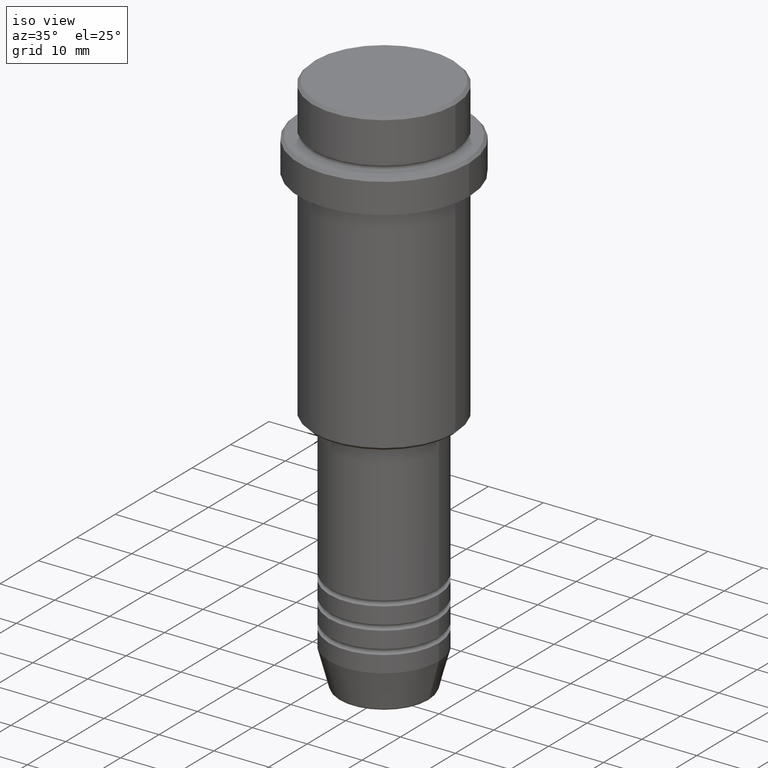
[diagram: clean part render]
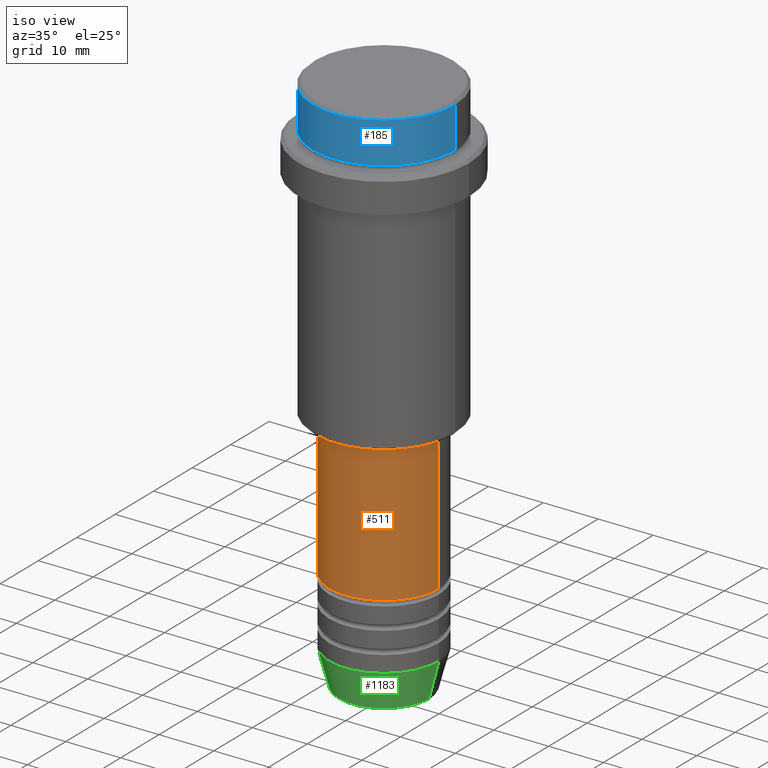
[diagram: same view with three faces highlighted in distinct colors, each labeled with its STEP entity id]
A machine part, iso view with three faces highlighted in distinct colors.
Their STEP definitions:

[orange] entity #511 — the highlighted cylindrical surface (partial cylindrical patch) has radius 10 mm, axis along (-0, -0, 1).
#30 = DIRECTION ( 'NONE',  ( -0.000000000000000000, -0.000000000000000000, 1.000000000000000000 ) ) ;
#105 = EDGE_CURVE ( 'NONE', #400, #189, #317, .T. ) ;
#120 = VERTEX_POINT ( 'NONE', #1023 ) ;
#167 = DIRECTION ( 'NONE',  ( 1.000000000000000000, 0.000000000000000000, 0.000000000000000000 ) ) ;
#189 = VERTEX_POINT ( 'NONE', #632 ) ;
#221 = ORIENTED_EDGE ( 'NONE', *, *, #105, .F. ) ;
#292 = AXIS2_PLACEMENT_3D ( 'NONE', #812, #30, #468 ) ;
#317 = CIRCLE ( 'NONE', #1143, 10.00000000000000178 ) ;
#400 = VERTEX_POINT ( 'NONE', #563 ) ;
#465 = ORIENTED_EDGE ( 'NONE', *, *, #1091, .F. ) ;
#468 = DIRECTION ( 'NONE',  ( 1.000000000000000000, 0.000000000000000000, 0.000000000000000000 ) ) ;
#477 = CARTESIAN_POINT ( 'NONE',  ( 0.000000000000000000, 0.000000000000000000, 0.000000000000000000 ) ) ;
#511 = ADVANCED_FACE ( 'NONE', ( #925 ), #573, .T. ) ;
#519 = EDGE_CURVE ( 'NONE', #1058, #120, #730, .T. ) ;
#563 = CARTESIAN_POINT ( 'NONE',  ( -10.00000000000000178, 1.224646799147353454E-15, -55.99999999999997868 ) ) ;
#573 = CYLINDRICAL_SURFACE ( 'NONE', #844, 10.00000000000000178 ) ;
#584 = DIRECTION ( 'NONE',  ( -0.000000000000000000, -0.000000000000000000, 1.000000000000000000 ) ) ;
#632 = CARTESIAN_POINT ( 'NONE',  ( 10.00000000000000178, 0.000000000000000000, -55.99999999999997868 ) ) ;
#634 = DIRECTION ( 'NONE',  ( -0.000000000000000000, -0.000000000000000000, 1.000000000000000000 ) ) ;
#671 = LINE ( 'NONE', #1319, #1375 ) ;
#730 = CIRCLE ( 'NONE', #292, 10.00000000000000000 ) ;
#742 = CARTESIAN_POINT ( 'NONE',  ( -10.00000000000000178, 1.224646799147353454E-15, 0.000000000000000000 ) ) ;
#767 = ORIENTED_EDGE ( 'NONE', *, *, #519, .T. ) ;
#812 = CARTESIAN_POINT ( 'NONE',  ( 0.000000000000000000, 0.000000000000000000, -80.99999999999987210 ) ) ;
#834 = ORIENTED_EDGE ( 'NONE', *, *, #1252, .T. ) ;
#844 = AXIS2_PLACEMENT_3D ( 'NONE', #477, #917, #1358 ) ;
#846 = LINE ( 'NONE', #742, #1016 ) ;
#883 = CARTESIAN_POINT ( 'NONE',  ( 0.000000000000000000, 0.000000000000000000, -55.99999999999997868 ) ) ;
#917 = DIRECTION ( 'NONE',  ( -0.000000000000000000, -0.000000000000000000, 1.000000000000000000 ) ) ;
#925 = FACE_OUTER_BOUND ( 'NONE', #941, .T. ) ;
#927 = CARTESIAN_POINT ( 'NONE',  ( -10.00000000000000000, 1.224646799147353256E-15, -80.99999999999987210 ) ) ;
#941 = EDGE_LOOP ( 'NONE', ( #465, #767, #834, #221 ) ) ;
#1016 = VECTOR ( 'NONE', #1269, 1000.000000000000000 ) ;
#1023 = CARTESIAN_POINT ( 'NONE',  ( 10.00000000000000000, 0.000000000000000000, -80.99999999999987210 ) ) ;
#1058 = VERTEX_POINT ( 'NONE', #927 ) ;
#1091 = EDGE_CURVE ( 'NONE', #1058, #400, #846, .T. ) ;
#1143 = AXIS2_PLACEMENT_3D ( 'NONE', #883, #584, #167 ) ;
#1252 = EDGE_CURVE ( 'NONE', #120, #189, #671, .T. ) ;
#1269 = DIRECTION ( 'NONE',  ( -0.000000000000000000, -0.000000000000000000, 1.000000000000000000 ) ) ;
#1319 = CARTESIAN_POINT ( 'NONE',  ( 10.00000000000000178, 0.000000000000000000, 0.000000000000000000 ) ) ;
#1358 = DIRECTION ( 'NONE',  ( 1.000000000000000000, 0.000000000000000000, 0.000000000000000000 ) ) ;
#1375 = VECTOR ( 'NONE', #634, 1000.000000000000000 ) ;

[blue] entity #185 — the highlighted cylindrical surface (partial cylindrical patch) has radius 13 mm, axis along (-0, -0, 1).
#69 = DIRECTION ( 'NONE',  ( -0.000000000000000000, -0.000000000000000000, 1.000000000000000000 ) ) ;
#81 = CARTESIAN_POINT ( 'NONE',  ( 12.99999999999999822, 0.000000000000000000, -7.999999999999998224 ) ) ;
#168 = EDGE_LOOP ( 'NONE', ( #1008, #912, #283, #622 ) ) ;
#185 = ADVANCED_FACE ( 'NONE', ( #412 ), #196, .T. ) ;
#192 = EDGE_CURVE ( 'NONE', #532, #1312, #843, .T. ) ;
#196 = CYLINDRICAL_SURFACE ( 'NONE', #1237, 12.99999999999999822 ) ;
#258 = EDGE_CURVE ( 'NONE', #352, #1312, #842, .T. ) ;
#277 = VERTEX_POINT ( 'NONE', #81 ) ;
#282 = CARTESIAN_POINT ( 'NONE',  ( -12.99999999999999822, 1.592040838891558898E-15, 0.000000000000000000 ) ) ;
#283 = ORIENTED_EDGE ( 'NONE', *, *, #426, .T. ) ;
#288 = DIRECTION ( 'NONE',  ( 0.000000000000000000, 0.000000000000000000, -1.000000000000000000 ) ) ;
#295 = AXIS2_PLACEMENT_3D ( 'NONE', #655, #750, #1185 ) ;
#352 = VERTEX_POINT ( 'NONE', #1205 ) ;
#373 = CARTESIAN_POINT ( 'NONE',  ( 12.99999999999999822, 0.000000000000000000, 0.000000000000000000 ) ) ;
#406 = VECTOR ( 'NONE', #728, 1000.000000000000000 ) ;
#412 = FACE_OUTER_BOUND ( 'NONE', #168, .T. ) ;
#426 = EDGE_CURVE ( 'NONE', #277, #532, #602, .T. ) ;
#510 = DIRECTION ( 'NONE',  ( 1.000000000000000000, 0.000000000000000000, 0.000000000000000000 ) ) ;
#532 = VERTEX_POINT ( 'NONE', #1247 ) ;
#602 = LINE ( 'NONE', #373, #1371 ) ;
#622 = ORIENTED_EDGE ( 'NONE', *, *, #192, .T. ) ;
#655 = CARTESIAN_POINT ( 'NONE',  ( 0.000000000000000000, 0.000000000000000000, -7.999999999999998224 ) ) ;
#705 = DIRECTION ( 'NONE',  ( -0.000000000000000000, -0.000000000000000000, 1.000000000000000000 ) ) ;
#706 = AXIS2_PLACEMENT_3D ( 'NONE', #1075, #288, #510 ) ;
#728 = DIRECTION ( 'NONE',  ( -0.000000000000000000, -0.000000000000000000, 1.000000000000000000 ) ) ;
#733 = CIRCLE ( 'NONE', #295, 12.99999999999999822 ) ;
#750 = DIRECTION ( 'NONE',  ( -0.000000000000000000, -0.000000000000000000, 1.000000000000000000 ) ) ;
#752 = DIRECTION ( 'NONE',  ( 1.000000000000000000, 0.000000000000000000, 0.000000000000000000 ) ) ;
#794 = EDGE_CURVE ( 'NONE', #352, #277, #733, .T. ) ;
#842 = LINE ( 'NONE', #282, #406 ) ;
#843 = CIRCLE ( 'NONE', #706, 12.99999999999999822 ) ;
#891 = CARTESIAN_POINT ( 'NONE',  ( -12.99999999999999822, 1.592040838891558898E-15, -0.5000000000000177636 ) ) ;
#912 = ORIENTED_EDGE ( 'NONE', *, *, #794, .T. ) ;
#951 = CARTESIAN_POINT ( 'NONE',  ( 0.000000000000000000, 0.000000000000000000, 0.000000000000000000 ) ) ;
#1008 = ORIENTED_EDGE ( 'NONE', *, *, #258, .F. ) ;
#1075 = CARTESIAN_POINT ( 'NONE',  ( 0.000000000000000000, 0.000000000000000000, -0.5000000000000177636 ) ) ;
#1185 = DIRECTION ( 'NONE',  ( 1.000000000000000000, 0.000000000000000000, 0.000000000000000000 ) ) ;
#1205 = CARTESIAN_POINT ( 'NONE',  ( -12.99999999999999822, 1.592040838891558898E-15, -7.999999999999998224 ) ) ;
#1237 = AXIS2_PLACEMENT_3D ( 'NONE', #951, #69, #752 ) ;
#1247 = CARTESIAN_POINT ( 'NONE',  ( 12.99999999999999822, 0.000000000000000000, -0.5000000000000177636 ) ) ;
#1312 = VERTEX_POINT ( 'NONE', #891 ) ;
#1371 = VECTOR ( 'NONE', #705, 1000.000000000000000 ) ;

[green] entity #1183 — the highlighted conical surface has half-angle 15 deg.
#22 = EDGE_CURVE ( 'NONE', #526, #591, #452, .T. ) ;
#83 = DIRECTION ( 'NONE',  ( 0.2588190451025214611, 0.000000000000000000, 0.9659258262890679791 ) ) ;
#98 = EDGE_CURVE ( 'NONE', #526, #414, #916, .T. ) ;
#197 = ORIENTED_EDGE ( 'NONE', *, *, #22, .F. ) ;
#291 = AXIS2_PLACEMENT_3D ( 'NONE', #797, #1234, #930 ) ;
#293 = EDGE_LOOP ( 'NONE', ( #197, #416, #454, #703 ) ) ;
#414 = VERTEX_POINT ( 'NONE', #1085 ) ;
#415 = CARTESIAN_POINT ( 'NONE',  ( 0.000000000000000000, 0.000000000000000000, -93.00000000000000000 ) ) ;
#416 = ORIENTED_EDGE ( 'NONE', *, *, #98, .T. ) ;
#439 = CARTESIAN_POINT ( 'NONE',  ( 0.000000000000000000, 0.000000000000000000, -93.00000000000000000 ) ) ;
#452 = LINE ( 'NONE', #1152, #594 ) ;
#454 = ORIENTED_EDGE ( 'NONE', *, *, #1311, .T. ) ;
#521 = CARTESIAN_POINT ( 'NONE',  ( -10.00000000000000000, 1.224646799147353256E-15, -93.00000000000000000 ) ) ;
#526 = VERTEX_POINT ( 'NONE', #816 ) ;
#558 = DIRECTION ( 'NONE',  ( -0.000000000000000000, -0.000000000000000000, 1.000000000000000000 ) ) ;
#591 = VERTEX_POINT ( 'NONE', #521 ) ;
#594 = VECTOR ( 'NONE', #681, 1000.000000000000114 ) ;
#653 = DIRECTION ( 'NONE',  ( 1.000000000000000000, 0.000000000000000000, 0.000000000000000000 ) ) ;
#681 = DIRECTION ( 'NONE',  ( -0.2588190451025214611, 3.169619151431774186E-17, 0.9659258262890679791 ) ) ;
#703 = ORIENTED_EDGE ( 'NONE', *, *, #1248, .F. ) ;
#797 = CARTESIAN_POINT ( 'NONE',  ( 0.000000000000000000, 0.000000000000000000, -99.62940952255127058 ) ) ;
#808 = VECTOR ( 'NONE', #83, 1000.000000000000114 ) ;
#816 = CARTESIAN_POINT ( 'NONE',  ( -8.223655072137185940, 1.115877042642911659E-15, -99.62940952255127058 ) ) ;
#855 = DIRECTION ( 'NONE',  ( 1.000000000000000000, 0.000000000000000000, 0.000000000000000000 ) ) ;
#867 = FACE_OUTER_BOUND ( 'NONE', #293, .T. ) ;
#916 = CIRCLE ( 'NONE', #291, 8.223655072137185940 ) ;
#930 = DIRECTION ( 'NONE',  ( 1.000000000000000000, 0.000000000000000000, 0.000000000000000000 ) ) ;
#966 = AXIS2_PLACEMENT_3D ( 'NONE', #439, #558, #653 ) ;
#978 = CARTESIAN_POINT ( 'NONE',  ( 10.00000000000000000, 0.000000000000000000, -93.00000000000000000 ) ) ;
#1085 = CARTESIAN_POINT ( 'NONE',  ( 8.223655072137185940, 0.000000000000000000, -99.62940952255127058 ) ) ;
#1117 = VERTEX_POINT ( 'NONE', #1275 ) ;
#1152 = CARTESIAN_POINT ( 'NONE',  ( -10.00000000000000000, 1.224646799147353256E-15, -93.00000000000000000 ) ) ;
#1169 = CONICAL_SURFACE ( 'NONE', #1354, 10.00000000000000000, 0.2617993877991502405 ) ;
#1183 = ADVANCED_FACE ( 'NONE', ( #867 ), #1169, .T. ) ;
#1191 = LINE ( 'NONE', #978, #808 ) ;
#1221 = CIRCLE ( 'NONE', #966, 10.00000000000000000 ) ;
#1234 = DIRECTION ( 'NONE',  ( -0.000000000000000000, -0.000000000000000000, 1.000000000000000000 ) ) ;
#1248 = EDGE_CURVE ( 'NONE', #591, #1117, #1221, .T. ) ;
#1275 = CARTESIAN_POINT ( 'NONE',  ( 10.00000000000000000, 0.000000000000000000, -93.00000000000000000 ) ) ;
#1311 = EDGE_CURVE ( 'NONE', #414, #1117, #1191, .T. ) ;
#1354 = AXIS2_PLACEMENT_3D ( 'NONE', #415, #1398, #855 ) ;
#1398 = DIRECTION ( 'NONE',  ( -0.000000000000000000, -0.000000000000000000, 1.000000000000000000 ) ) ;